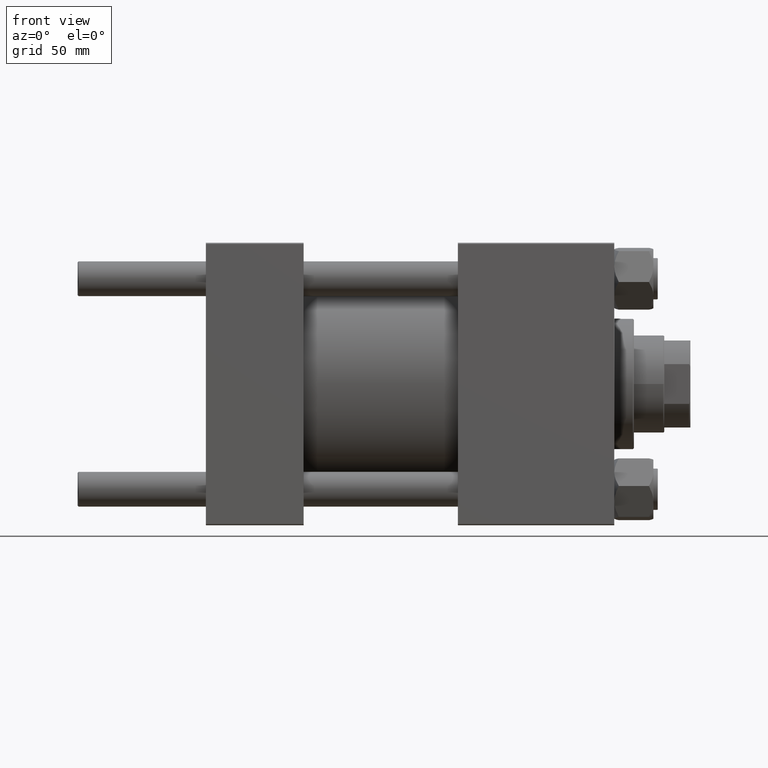
[diagram: clean part render]
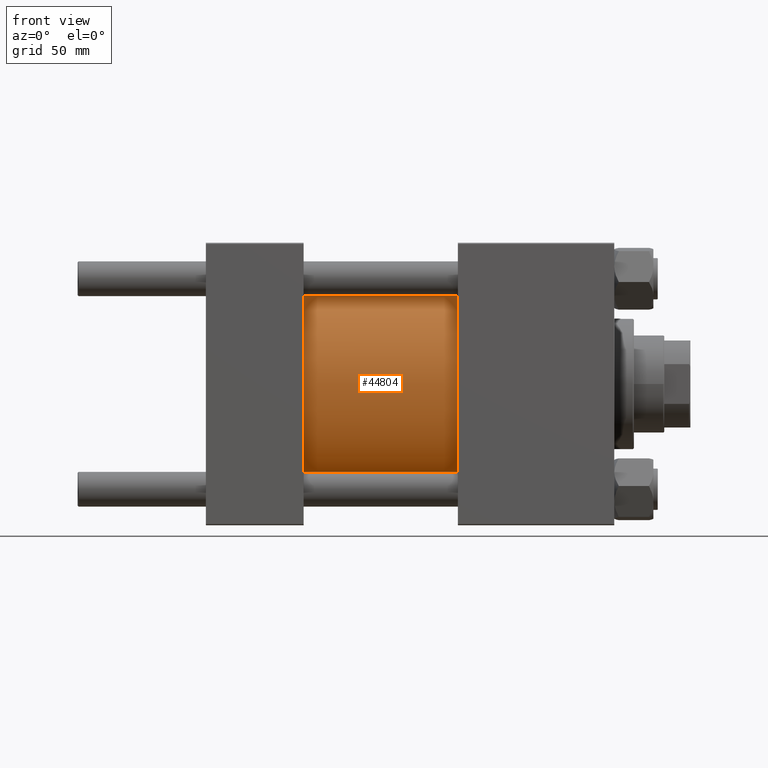
[diagram: same view with one face highlighted and labeled with its STEP entity id]
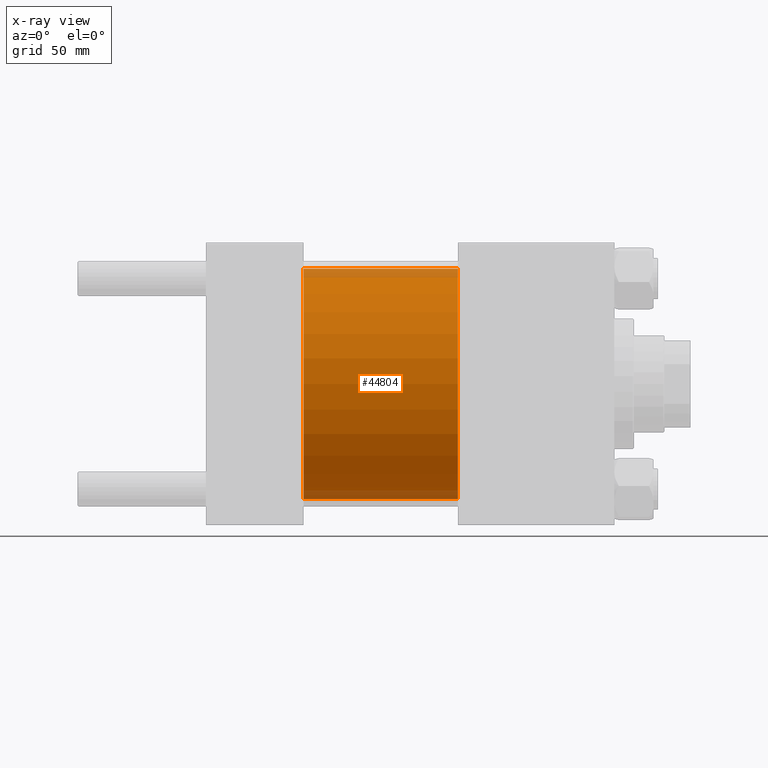
[diagram: x-ray of the same camera — body ghosted, the highlighted face saturated]
A machine part, front view. The second image highlights one B-rep face of the part: STEP entity #44804.
The next image is the same camera in x-ray: the body ghosted, the highlighted face saturated — about 8% of this face is hidden behind the body in this view.
In plain terms, the highlighted cylindrical surface (partial cylindrical patch) has radius 53 mm, axis along (-1, -0, -0).
Its self-contained STEP definition (entity closure, byte-faithful):
#17 = ORIENTED_EDGE ( 'NONE', *, *, #24541, .T. ) ;
#2117 = CARTESIAN_POINT ( 'NONE',  ( 115.9999999999999858, 6.490628035480973107E-15, -53.00000000000000711 ) ) ;
#3068 = ORIENTED_EDGE ( 'NONE', *, *, #7095, .F. ) ;
#3144 = LINE ( 'NONE', #6464, #25677 ) ;
#5920 = DIRECTION ( 'NONE',  ( -1.000000000000000000, -0.000000000000000000, -0.000000000000000000 ) ) ;
#6464 = CARTESIAN_POINT ( 'NONE',  ( 115.9999999999999858, 0.000000000000000000, 53.00000000000000711 ) ) ;
#7095 = EDGE_CURVE ( 'NONE', #17640, #39384, #25505, .T. ) ;
#7110 = CARTESIAN_POINT ( 'NONE',  ( 115.9999999999999858, 0.000000000000000000, 0.000000000000000000 ) ) ;
#7432 = DIRECTION ( 'NONE',  ( 0.000000000000000000, 0.000000000000000000, -1.000000000000000000 ) ) ;
#9358 = EDGE_LOOP ( 'NONE', ( #3068, #39019, #22832, #17 ) ) ;
#9607 = CIRCLE ( 'NONE', #23453, 53.00000000000000711 ) ;
#12902 = CARTESIAN_POINT ( 'NONE',  ( 45.00000000000000000, 0.000000000000000000, 0.000000000000000000 ) ) ;
#16316 = CIRCLE ( 'NONE', #19587, 53.00000000000000711 ) ;
#17640 = VERTEX_POINT ( 'NONE', #2117 ) ;
#17672 = VECTOR ( 'NONE', #5920, 1000.000000000000000 ) ;
#18057 = EDGE_CURVE ( 'NONE', #43291, #17640, #9607, .T. ) ;
#19587 = AXIS2_PLACEMENT_3D ( 'NONE', #12902, #47792, #48550 ) ;
#22131 = CYLINDRICAL_SURFACE ( 'NONE', #37087, 53.00000000000000711 ) ;
#22744 = DIRECTION ( 'NONE',  ( -1.000000000000000000, -0.000000000000000000, -0.000000000000000000 ) ) ;
#22832 = ORIENTED_EDGE ( 'NONE', *, *, #40452, .T. ) ;
#23453 = AXIS2_PLACEMENT_3D ( 'NONE', #41796, #45125, #7432 ) ;
#24541 = EDGE_CURVE ( 'NONE', #35308, #39384, #16316, .T. ) ;
#25505 = LINE ( 'NONE', #29075, #17672 ) ;
#25677 = VECTOR ( 'NONE', #22744, 1000.000000000000000 ) ;
#26436 = FACE_OUTER_BOUND ( 'NONE', #9358, .T. ) ;
#29075 = CARTESIAN_POINT ( 'NONE',  ( 115.9999999999999858, 6.490628035480973107E-15, -53.00000000000000711 ) ) ;
#30652 = CARTESIAN_POINT ( 'NONE',  ( 45.00000000000000000, 0.000000000000000000, 53.00000000000000711 ) ) ;
#35308 = VERTEX_POINT ( 'NONE', #30652 ) ;
#36767 = CARTESIAN_POINT ( 'NONE',  ( 115.9999999999999858, 0.000000000000000000, 53.00000000000000711 ) ) ;
#37087 = AXIS2_PLACEMENT_3D ( 'NONE', #7110, #48880, #38160 ) ;
#38160 = DIRECTION ( 'NONE',  ( 0.000000000000000000, 0.000000000000000000, 1.000000000000000000 ) ) ;
#39019 = ORIENTED_EDGE ( 'NONE', *, *, #18057, .F. ) ;
#39384 = VERTEX_POINT ( 'NONE', #41429 ) ;
#40452 = EDGE_CURVE ( 'NONE', #43291, #35308, #3144, .T. ) ;
#41429 = CARTESIAN_POINT ( 'NONE',  ( 45.00000000000000000, 6.490628035480973107E-15, -53.00000000000000711 ) ) ;
#41796 = CARTESIAN_POINT ( 'NONE',  ( 115.9999999999999858, 0.000000000000000000, 0.000000000000000000 ) ) ;
#43291 = VERTEX_POINT ( 'NONE', #36767 ) ;
#44804 = ADVANCED_FACE ( 'NONE', ( #26436 ), #22131, .T. ) ;
#45125 = DIRECTION ( 'NONE',  ( 1.000000000000000000, 0.000000000000000000, 0.000000000000000000 ) ) ;
#47792 = DIRECTION ( 'NONE',  ( 1.000000000000000000, -0.000000000000000000, 0.000000000000000000 ) ) ;
#48550 = DIRECTION ( 'NONE',  ( 0.000000000000000000, 0.000000000000000000, 1.000000000000000000 ) ) ;
#48880 = DIRECTION ( 'NONE',  ( -1.000000000000000000, -0.000000000000000000, -0.000000000000000000 ) ) ;